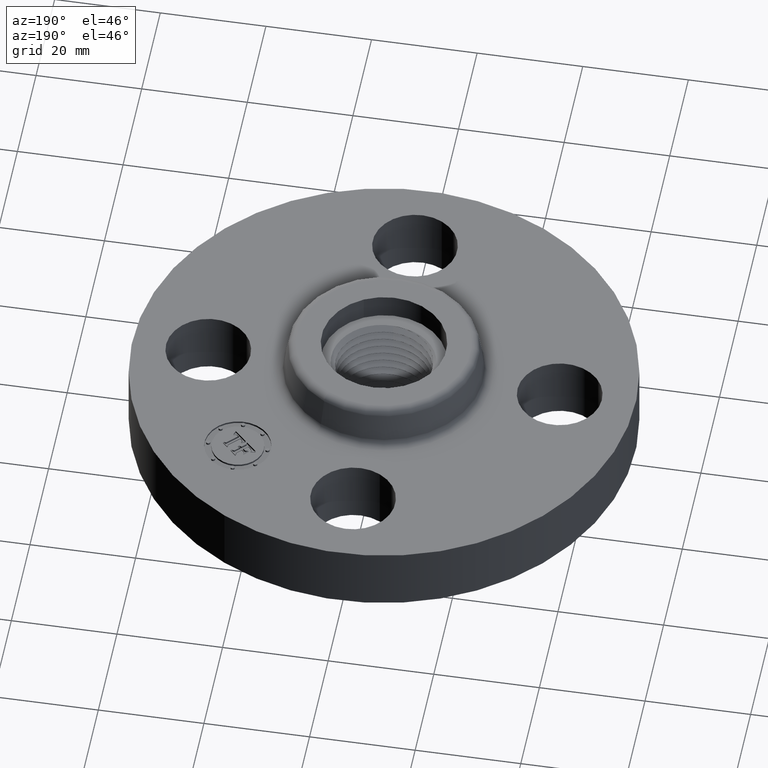
[diagram: clean part render]
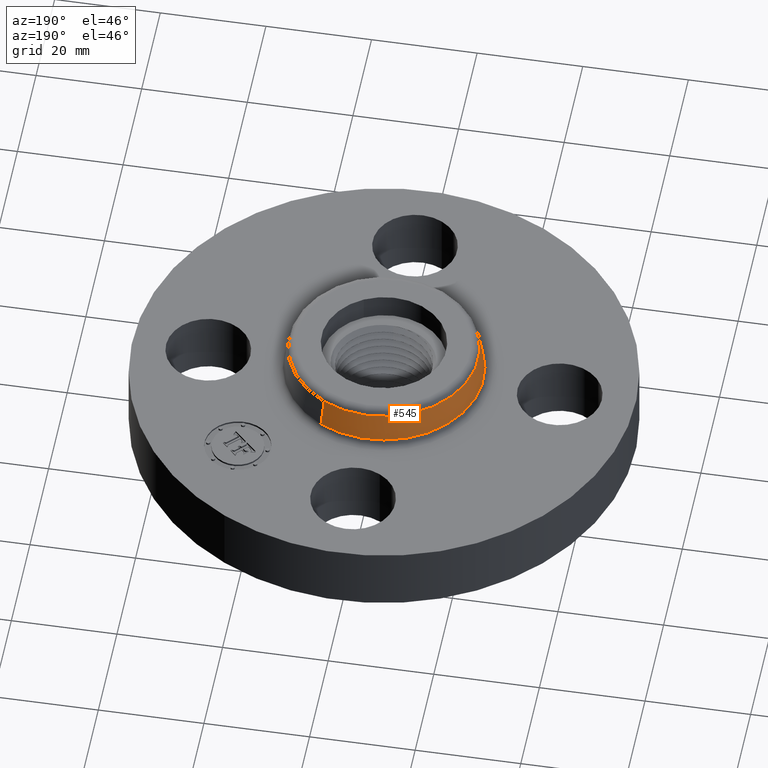
[diagram: same view with one face highlighted and labeled with its STEP entity id]
A machine part, auxiliary view. The second image highlights one B-rep face of the part: STEP entity #545.
In plain terms, the highlighted conical surface has half-angle 10 deg.
Its self-contained STEP definition (entity closure, byte-faithful):
#493=AXIS2_PLACEMENT_3D('Circle Axis2P3D',#491,#492,$) ;
#506=AXIS2_PLACEMENT_3D('Cone Axis2P3D',#503,#504,#505) ;
#536=AXIS2_PLACEMENT_3D('Circle Axis2P3D',#534,#535,$) ;
#464=CARTESIAN_POINT('Vertex',(0.355377782267,0.650514667009,0.549581109342)) ;
#471=CARTESIAN_POINT('Vertex',(-0.355377782267,-0.650514667009,0.549581109342)) ;
#491=CARTESIAN_POINT('Axis2P3D Location',(0.,0.,0.549581109342)) ;
#503=CARTESIAN_POINT('Axis2P3D Location',(0.,0.,0.760418890663)) ;
#508=CARTESIAN_POINT('Line Origine',(0.346466127012,0.634201991484,0.655000000003)) ;
#512=CARTESIAN_POINT('Vertex',(0.337554471756,0.617889315958,0.760418890663)) ;
#519=CARTESIAN_POINT('Vertex',(-0.337554471756,-0.617889315958,0.760418890663)) ;
#522=CARTESIAN_POINT('Line Origine',(-0.346466127012,-0.634201991484,0.655000000003)) ;
#534=CARTESIAN_POINT('Axis2P3D Location',(0.,0.,0.760418890663)) ;
#492=DIRECTION('Axis2P3D Direction',(0.,0.,-0.0393700787402)) ;
#504=DIRECTION('Axis2P3D Direction',(0.,0.,-0.0393700787402)) ;
#505=DIRECTION('Axis2P3D XDirection',(-0.0188750212049,-0.0345504945626,0.)) ;
#509=DIRECTION('Vector Direction',(0.00327761303565,0.00599963041829,-0.03877195878)) ;
#523=DIRECTION('Vector Direction',(-0.00327761303565,-0.00599963041829,-0.03877195878)) ;
#535=DIRECTION('Axis2P3D Direction',(0.,0.,-0.0393700787402)) ;
#510=VECTOR('Line Direction',#509,0.0393700787402) ;
#524=VECTOR('Line Direction',#523,0.0393700787402) ;
#540=ORIENTED_EDGE('',*,*,#495,.F.) ;
#541=ORIENTED_EDGE('',*,*,#526,.T.) ;
#542=ORIENTED_EDGE('',*,*,#538,.T.) ;
#543=ORIENTED_EDGE('',*,*,#514,.F.) ;
#545=ADVANCED_FACE('PartBody',(#544),#507,.T.) ;
#494=CIRCLE('generated circle',#493,0.741257512693) ;
#537=CIRCLE('generated circle',#536,0.704081123293) ;
#507=CONICAL_SURFACE('Cone',#506,0.704081123293,0.174532925199) ;
#495=EDGE_CURVE('',#472,#465,#494,.T.) ;
#514=EDGE_CURVE('',#465,#513,#511,.F.) ;
#526=EDGE_CURVE('',#472,#520,#525,.F.) ;
#538=EDGE_CURVE('',#520,#513,#537,.T.) ;
#539=EDGE_LOOP('',(#540,#541,#542,#543)) ;
#544=FACE_OUTER_BOUND('',#539,.T.) ;
#511=LINE('Line',#508,#510) ;
#525=LINE('Line',#522,#524) ;
#465=VERTEX_POINT('',#464) ;
#472=VERTEX_POINT('',#471) ;
#513=VERTEX_POINT('',#512) ;
#520=VERTEX_POINT('',#519) ;